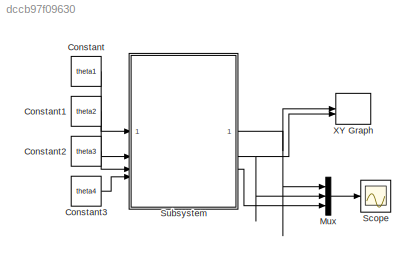
MODEL slx_dccb97f09630
KIND model
CONFIG AbsTol = auto
CONFIG EnableMultiTasking = off
CONFIG FixedStep = 0.001
CONFIG MaxStep = auto
CONFIG MinStep = auto
CONFIG RelTol = 1e-3
CONFIG SampleTimeConstraint = Unconstrained
CONFIG SolverName = FixedStepAuto
CONFIG StartTime = 0.0
CONFIG StopTime = 130
BLOCK [Constant] Constant
  Value = theta1
BLOCK [Constant] Constant1
  Value = theta2
BLOCK [Constant] Constant2
  Value = theta3
BLOCK [Constant] Constant3
  Value = theta4
BLOCK [Mux] Mux
  DisplayOption = bar
  Inputs = 3
BLOCK [Scope] Scope
  Floating = off
  NumInputPorts = 1
  ScopeSpecificationString = Simulink.scopes.TimeScopeBlockCfg('CurrentConfiguration', extmgr.ConfigurationSet(extmgr.Configuration('Core','General UI',true),extmgr.Configuration('Core','Source UI',true),extmgr.Configuration('Sources','WiredSimulink',true,'DataLogging',true,'DataLoggingVariableName','out','DataLoggingSaveFormat','Array'),extmgr.Configuration('Visuals','Time Domain',true,'SerializedDisplays',{struct('MinYLimRe...<+1416ch>
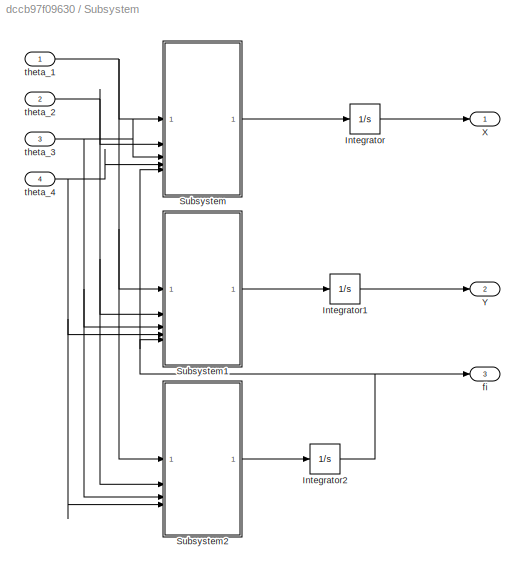
BLOCK [SubSystem] Subsystem
BLOCK [Integrator] Subsystem/Integrator
  InitialCondition = x0
BLOCK [Integrator] Subsystem/Integrator1
  InitialCondition = y0
BLOCK [Integrator] Subsystem/Integrator2
  InitialCondition = fi0
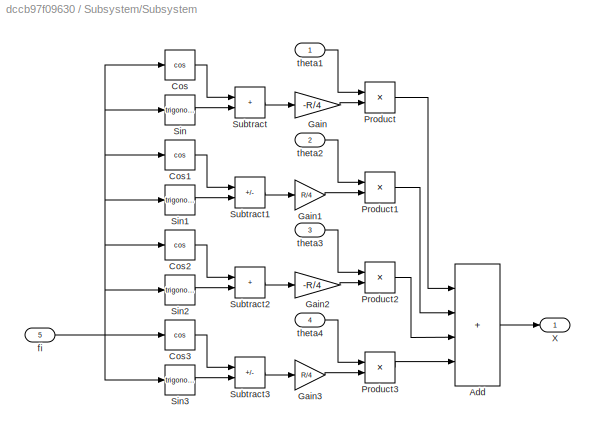
BLOCK [SubSystem] Subsystem/Subsystem
BLOCK [Sum] Subsystem/Subsystem/Add
  IconShape = rectangular
  Inputs = ++++
BLOCK [Trigonometry] Subsystem/Subsystem/Cos
  Operator = cos
BLOCK [Trigonometry] Subsystem/Subsystem/Cos1
  Operator = cos
BLOCK [Trigonometry] Subsystem/Subsystem/Cos2
  Operator = cos
BLOCK [Trigonometry] Subsystem/Subsystem/Cos3
  Operator = cos
BLOCK [Gain] Subsystem/Subsystem/Gain
  Gain = -R/4
BLOCK [Gain] Subsystem/Subsystem/Gain1
  Gain = R/4
BLOCK [Gain] Subsystem/Subsystem/Gain2
  Gain = -R/4
BLOCK [Gain] Subsystem/Subsystem/Gain3
  Gain = R/4
BLOCK [Product] Subsystem/Subsystem/Product
BLOCK [Product] Subsystem/Subsystem/Product1
BLOCK [Product] Subsystem/Subsystem/Product2
BLOCK [Product] Subsystem/Subsystem/Product3
BLOCK [Trigonometry] Subsystem/Subsystem/Sin
BLOCK [Trigonometry] Subsystem/Subsystem/Sin1
BLOCK [Trigonometry] Subsystem/Subsystem/Sin2
BLOCK [Trigonometry] Subsystem/Subsystem/Sin3
BLOCK [Sum] Subsystem/Subsystem/Subtract
  IconShape = rectangular
BLOCK [Sum] Subsystem/Subsystem/Subtract1
  IconShape = rectangular
  Inputs = +-
BLOCK [Sum] Subsystem/Subsystem/Subtract2
  IconShape = rectangular
BLOCK [Sum] Subsystem/Subsystem/Subtract3
  IconShape = rectangular
  Inputs = +-
BLOCK [Outport] Subsystem/Subsystem/X
BLOCK [Inport] Subsystem/Subsystem/fi
  Port = 5
BLOCK [Inport] Subsystem/Subsystem/theta1
BLOCK [Inport] Subsystem/Subsystem/theta2
  Port = 2
BLOCK [Inport] Subsystem/Subsystem/theta3
  Port = 3
BLOCK [Inport] Subsystem/Subsystem/theta4
  Port = 4
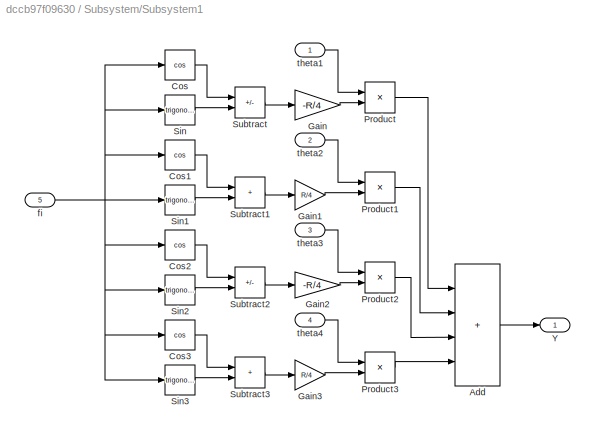
BLOCK [SubSystem] Subsystem/Subsystem1
BLOCK [Sum] Subsystem/Subsystem1/Add
  IconShape = rectangular
  Inputs = ++++
BLOCK [Trigonometry] Subsystem/Subsystem1/Cos
  Operator = cos
BLOCK [Trigonometry] Subsystem/Subsystem1/Cos1
  Operator = cos
BLOCK [Trigonometry] Subsystem/Subsystem1/Cos2
  Operator = cos
BLOCK [Trigonometry] Subsystem/Subsystem1/Cos3
  Operator = cos
BLOCK [Gain] Subsystem/Subsystem1/Gain
  Gain = -R/4
BLOCK [Gain] Subsystem/Subsystem1/Gain1
  Gain = R/4
BLOCK [Gain] Subsystem/Subsystem1/Gain2
  Gain = -R/4
BLOCK [Gain] Subsystem/Subsystem1/Gain3
  Gain = R/4
BLOCK [Product] Subsystem/Subsystem1/Product
BLOCK [Product] Subsystem/Subsystem1/Product1
BLOCK [Product] Subsystem/Subsystem1/Product2
BLOCK [Product] Subsystem/Subsystem1/Product3
BLOCK [Trigonometry] Subsystem/Subsystem1/Sin
BLOCK [Trigonometry] Subsystem/Subsystem1/Sin1
BLOCK [Trigonometry] Subsystem/Subsystem1/Sin2
BLOCK [Trigonometry] Subsystem/Subsystem1/Sin3
BLOCK [Sum] Subsystem/Subsystem1/Subtract
  IconShape = rectangular
  Inputs = -+
BLOCK [Sum] Subsystem/Subsystem1/Subtract1
  IconShape = rectangular
BLOCK [Sum] Subsystem/Subsystem1/Subtract2
  IconShape = rectangular
  Inputs = -+
BLOCK [Sum] Subsystem/Subsystem1/Subtract3
  IconShape = rectangular
BLOCK [Outport] Subsystem/Subsystem1/Y
BLOCK [Inport] Subsystem/Subsystem1/fi
  Port = 5
BLOCK [Inport] Subsystem/Subsystem1/theta1
BLOCK [Inport] Subsystem/Subsystem1/theta2
  Port = 2
BLOCK [Inport] Subsystem/Subsystem1/theta3
  Port = 3
BLOCK [Inport] Subsystem/Subsystem1/theta4
  Port = 4
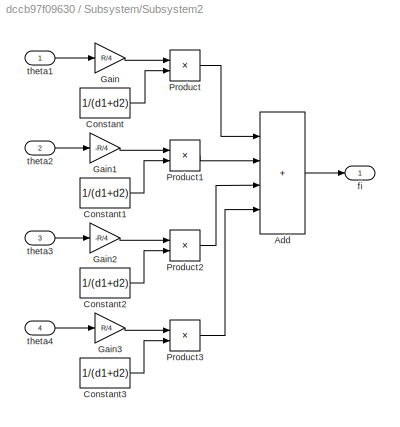
BLOCK [SubSystem] Subsystem/Subsystem2
BLOCK [Sum] Subsystem/Subsystem2/Add
  IconShape = rectangular
  Inputs = ++++
BLOCK [Constant] Subsystem/Subsystem2/Constant
  Value = 1/(d1+d2)
BLOCK [Constant] Subsystem/Subsystem2/Constant1
  Value = 1/(d1+d2)
BLOCK [Constant] Subsystem/Subsystem2/Constant2
  Value = 1/(d1+d2)
BLOCK [Constant] Subsystem/Subsystem2/Constant3
  Value = 1/(d1+d2)
BLOCK [Gain] Subsystem/Subsystem2/Gain
  Gain = R/4
BLOCK [Gain] Subsystem/Subsystem2/Gain1
  Gain = -R/4
BLOCK [Gain] Subsystem/Subsystem2/Gain2
  Gain = -R/4
BLOCK [Gain] Subsystem/Subsystem2/Gain3
  Gain = R/4
BLOCK [Product] Subsystem/Subsystem2/Product
BLOCK [Product] Subsystem/Subsystem2/Product1
BLOCK [Product] Subsystem/Subsystem2/Product2
BLOCK [Product] Subsystem/Subsystem2/Product3
BLOCK [Outport] Subsystem/Subsystem2/fi
BLOCK [Inport] Subsystem/Subsystem2/theta1
BLOCK [Inport] Subsystem/Subsystem2/theta2
  Port = 2
BLOCK [Inport] Subsystem/Subsystem2/theta3
  Port = 3
BLOCK [Inport] Subsystem/Subsystem2/theta4
  Port = 4
BLOCK [Outport] Subsystem/X
BLOCK [Outport] Subsystem/Y
  Port = 2
BLOCK [Outport] Subsystem/fi
  Port = 3
BLOCK [Inport] Subsystem/theta_1
BLOCK [Inport] Subsystem/theta_2
  Port = 2
BLOCK [Inport] Subsystem/theta_3
  Port = 3
BLOCK [Inport] Subsystem/theta_4
  Port = 4
BLOCK [Record] XY Graph
  CompatibilityTag = XY
  FileSettingsInternal = {"entries":[{"content":{"excelSettings":{"content":{},"type":"Streamout.ExcelSettings"}},"type":"Streamout.FileSettingStorage","uuid":""}],"packageUris":["http:\/\/schema.mathworks.com\/mf0\/streamout_blocks\/R2020a"],"version":"1.0"}
  Layout = [1 1]
  SignalsInternal = {"entries":[{"content":{"signals":[{"content":{"blockPath":[],"dimensions":[1],"domain":"","lineColor":"#a2142f","plots":[ 1 ],"port":1,"sid":[""],"signalID":1,"signalName":"Subsystem:1"},"type":"RecordBlkView.Signal","uuid":""},{"content":{"blockPath":[],"dimensions":[1],"domain":"","lineColor":"#139fff","plots":[ 1 ],"port":2,"sid":[""],"signalID":2,"signalName":"Subsystem:2"},"type":"RecordBlkV...<+168ch>
  VisualizationBindings = {"xyplotplugin":{"info":[{"series":[{"bindingParametersList":[{"parameter":"X-Axis","signalID":1,"signalName":"Subsystem:1"},{"parameter":"Y-Axis","signalID":2,"signalName":"Subsystem:2"}],"seriesID":0}],"subplotID":1}]}}
LINE Constant1:1 -> Subsystem:2
LINE Constant2:1 -> Subsystem:3
LINE Constant3:1 -> Subsystem:4
LINE Constant:1 -> Subsystem:1
LINE Mux:1 -> Scope:1
LINE Subsystem/Integrator1:1 -> Subsystem/Y:1
NET Subsystem/Integrator2:1 -> Subsystem/Subsystem1:5, Subsystem/Subsystem:5, Subsystem/fi:1
LINE Subsystem/Integrator:1 -> Subsystem/X:1
LINE Subsystem/Subsystem/Add:1 -> Subsystem/Subsystem/X:1
LINE Subsystem/Subsystem/Cos1:1 -> Subsystem/Subsystem/Subtract1:1
LINE Subsystem/Subsystem/Cos2:1 -> Subsystem/Subsystem/Subtract2:1
LINE Subsystem/Subsystem/Cos3:1 -> Subsystem/Subsystem/Subtract3:1
LINE Subsystem/Subsystem/Cos:1 -> Subsystem/Subsystem/Subtract:1
LINE Subsystem/Subsystem/Gain1:1 -> Subsystem/Subsystem/Product1:2
LINE Subsystem/Subsystem/Gain2:1 -> Subsystem/Subsystem/Product2:2
LINE Subsystem/Subsystem/Gain3:1 -> Subsystem/Subsystem/Product3:2
LINE Subsystem/Subsystem/Gain:1 -> Subsystem/Subsystem/Product:2
LINE Subsystem/Subsystem/Product1:1 -> Subsystem/Subsystem/Add:2
LINE Subsystem/Subsystem/Product2:1 -> Subsystem/Subsystem/Add:3
LINE Subsystem/Subsystem/Product3:1 -> Subsystem/Subsystem/Add:4
LINE Subsystem/Subsystem/Product:1 -> Subsystem/Subsystem/Add:1
LINE Subsystem/Subsystem/Sin1:1 -> Subsystem/Subsystem/Subtract1:2
LINE Subsystem/Subsystem/Sin2:1 -> Subsystem/Subsystem/Subtract2:2
LINE Subsystem/Subsystem/Sin3:1 -> Subsystem/Subsystem/Subtract3:2
LINE Subsystem/Subsystem/Sin:1 -> Subsystem/Subsystem/Subtract:2
LINE Subsystem/Subsystem/Subtract1:1 -> Subsystem/Subsystem/Gain1:1
LINE Subsystem/Subsystem/Subtract2:1 -> Subsystem/Subsystem/Gain2:1
LINE Subsystem/Subsystem/Subtract3:1 -> Subsystem/Subsystem/Gain3:1
LINE Subsystem/Subsystem/Subtract:1 -> Subsystem/Subsystem/Gain:1
NET Subsystem/Subsystem/fi:1 -> Subsystem/Subsystem/Cos1:1, Subsystem/Subsystem/Cos2:1, Subsystem/Subsystem/Cos3:1, Subsystem/Subsystem/Cos:1, Subsystem/Subsystem/Sin1:1, Subsystem/Subsystem/Sin2:1, Subsystem/Subsystem/Sin3:1, Subsystem/Subsystem/Sin:1
LINE Subsystem/Subsystem/theta1:1 -> Subsystem/Subsystem/Product:1
LINE Subsystem/Subsystem/theta2:1 -> Subsystem/Subsystem/Product1:1
LINE Subsystem/Subsystem/theta3:1 -> Subsystem/Subsystem/Product2:1
LINE Subsystem/Subsystem/theta4:1 -> Subsystem/Subsystem/Product3:1
LINE Subsystem/Subsystem1/Add:1 -> Subsystem/Subsystem1/Y:1
LINE Subsystem/Subsystem1/Cos1:1 -> Subsystem/Subsystem1/Subtract1:1
LINE Subsystem/Subsystem1/Cos2:1 -> Subsystem/Subsystem1/Subtract2:1
LINE Subsystem/Subsystem1/Cos3:1 -> Subsystem/Subsystem1/Subtract3:1
LINE Subsystem/Subsystem1/Cos:1 -> Subsystem/Subsystem1/Subtract:1
LINE Subsystem/Subsystem1/Gain1:1 -> Subsystem/Subsystem1/Product1:2
LINE Subsystem/Subsystem1/Gain2:1 -> Subsystem/Subsystem1/Product2:2
LINE Subsystem/Subsystem1/Gain3:1 -> Subsystem/Subsystem1/Product3:2
LINE Subsystem/Subsystem1/Gain:1 -> Subsystem/Subsystem1/Product:2
LINE Subsystem/Subsystem1/Product1:1 -> Subsystem/Subsystem1/Add:2
LINE Subsystem/Subsystem1/Product2:1 -> Subsystem/Subsystem1/Add:3
LINE Subsystem/Subsystem1/Product3:1 -> Subsystem/Subsystem1/Add:4
LINE Subsystem/Subsystem1/Product:1 -> Subsystem/Subsystem1/Add:1
LINE Subsystem/Subsystem1/Sin1:1 -> Subsystem/Subsystem1/Subtract1:2
LINE Subsystem/Subsystem1/Sin2:1 -> Subsystem/Subsystem1/Subtract2:2
LINE Subsystem/Subsystem1/Sin3:1 -> Subsystem/Subsystem1/Subtract3:2
LINE Subsystem/Subsystem1/Sin:1 -> Subsystem/Subsystem1/Subtract:2
LINE Subsystem/Subsystem1/Subtract1:1 -> Subsystem/Subsystem1/Gain1:1
LINE Subsystem/Subsystem1/Subtract2:1 -> Subsystem/Subsystem1/Gain2:1
LINE Subsystem/Subsystem1/Subtract3:1 -> Subsystem/Subsystem1/Gain3:1
LINE Subsystem/Subsystem1/Subtract:1 -> Subsystem/Subsystem1/Gain:1
NET Subsystem/Subsystem1/fi:1 -> Subsystem/Subsystem1/Cos1:1, Subsystem/Subsystem1/Cos2:1, Subsystem/Subsystem1/Cos3:1, Subsystem/Subsystem1/Cos:1, Subsystem/Subsystem1/Sin1:1, Subsystem/Subsystem1/Sin2:1, Subsystem/Subsystem1/Sin3:1, Subsystem/Subsystem1/Sin:1
LINE Subsystem/Subsystem1/theta1:1 -> Subsystem/Subsystem1/Product:1
LINE Subsystem/Subsystem1/theta2:1 -> Subsystem/Subsystem1/Product1:1
LINE Subsystem/Subsystem1/theta3:1 -> Subsystem/Subsystem1/Product2:1
LINE Subsystem/Subsystem1/theta4:1 -> Subsystem/Subsystem1/Product3:1
LINE Subsystem/Subsystem1:1 -> Subsystem/Integrator1:1
LINE Subsystem/Subsystem2/Add:1 -> Subsystem/Subsystem2/fi:1
LINE Subsystem/Subsystem2/Constant1:1 -> Subsystem/Subsystem2/Product1:2
LINE Subsystem/Subsystem2/Constant2:1 -> Subsystem/Subsystem2/Product2:2
LINE Subsystem/Subsystem2/Constant3:1 -> Subsystem/Subsystem2/Product3:2
LINE Subsystem/Subsystem2/Constant:1 -> Subsystem/Subsystem2/Product:2
LINE Subsystem/Subsystem2/Gain1:1 -> Subsystem/Subsystem2/Product1:1
LINE Subsystem/Subsystem2/Gain2:1 -> Subsystem/Subsystem2/Product2:1
LINE Subsystem/Subsystem2/Gain3:1 -> Subsystem/Subsystem2/Product3:1
LINE Subsystem/Subsystem2/Gain:1 -> Subsystem/Subsystem2/Product:1
LINE Subsystem/Subsystem2/Product1:1 -> Subsystem/Subsystem2/Add:2
LINE Subsystem/Subsystem2/Product2:1 -> Subsystem/Subsystem2/Add:3
LINE Subsystem/Subsystem2/Product3:1 -> Subsystem/Subsystem2/Add:4
LINE Subsystem/Subsystem2/Product:1 -> Subsystem/Subsystem2/Add:1
LINE Subsystem/Subsystem2/theta1:1 -> Subsystem/Subsystem2/Gain:1
LINE Subsystem/Subsystem2/theta2:1 -> Subsystem/Subsystem2/Gain1:1
LINE Subsystem/Subsystem2/theta3:1 -> Subsystem/Subsystem2/Gain2:1
LINE Subsystem/Subsystem2/theta4:1 -> Subsystem/Subsystem2/Gain3:1
LINE Subsystem/Subsystem2:1 -> Subsystem/Integrator2:1
LINE Subsystem/Subsystem:1 -> Subsystem/Integrator:1
NET Subsystem/theta_1:1 -> Subsystem/Subsystem1:1, Subsystem/Subsystem2:1, Subsystem/Subsystem:1
NET Subsystem/theta_2:1 -> Subsystem/Subsystem1:2, Subsystem/Subsystem2:2, Subsystem/Subsystem:2
NET Subsystem/theta_3:1 -> Subsystem/Subsystem1:3, Subsystem/Subsystem2:3, Subsystem/Subsystem:3
NET Subsystem/theta_4:1 -> Subsystem/Subsystem1:4, Subsystem/Subsystem2:4, Subsystem/Subsystem:4
NET Subsystem:1 -> Mux:1, XY Graph:1
NET Subsystem:2 -> Mux:2, XY Graph:2
LINE Subsystem:3 -> Mux:3
note: NET lines group one-source signal fan-out (src -> all destinations, sorted); 1:1 wires keep LINE
